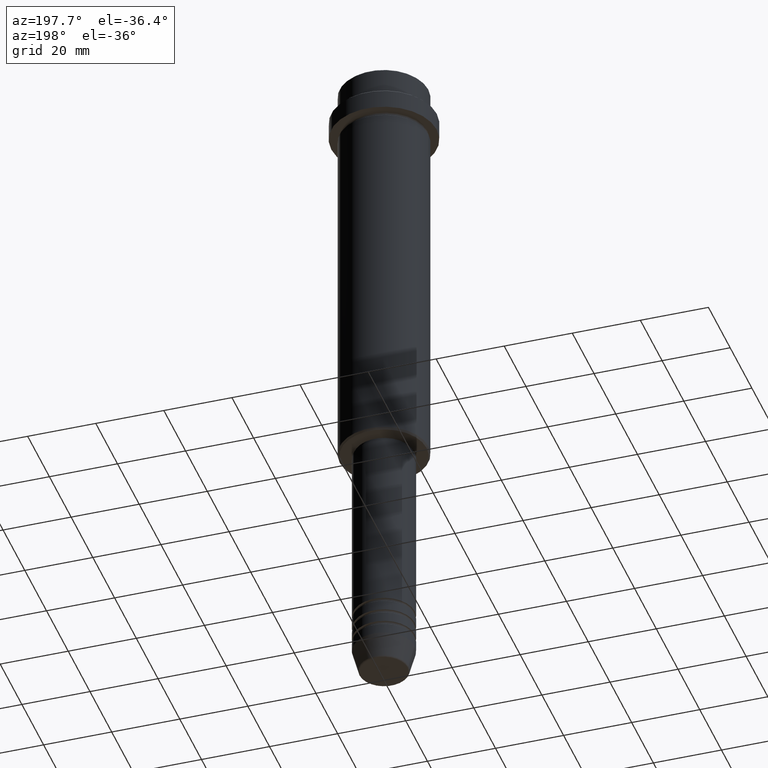
[diagram: clean part render]
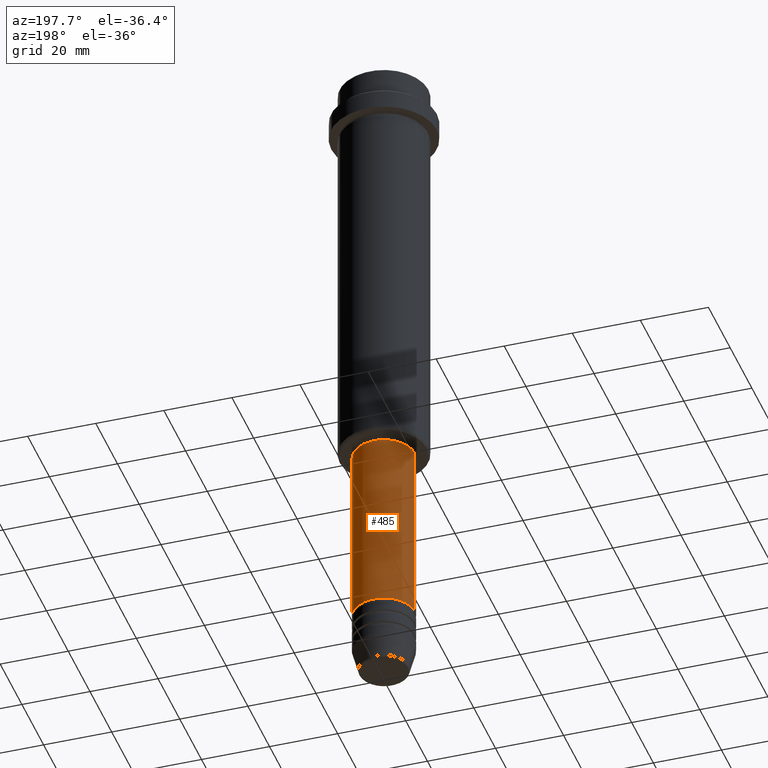
[diagram: same view with one face highlighted and labeled with its STEP entity id]
A machine part, auxiliary view. The second image highlights one B-rep face of the part: STEP entity #485.
In plain terms, the highlighted cylindrical surface (edge-blend (fillet) strip) has radius 9 mm, axis along (-0, -0, 1).
Its self-contained STEP definition (entity closure, byte-faithful):
#30 = DIRECTION ( 'NONE',  ( -0.000000000000000000, -0.000000000000000000, 1.000000000000000000 ) ) ;
#61 = CARTESIAN_POINT ( 'NONE',  ( 9.000000000000001776, 0.000000000000000000, 0.000000000000000000 ) ) ;
#114 = AXIS2_PLACEMENT_3D ( 'NONE', #522, #291, #1176 ) ;
#126 = CARTESIAN_POINT ( 'NONE',  ( -9.000000000000001776, 1.102182119232617911E-15, 0.000000000000000000 ) ) ;
#131 = CIRCLE ( 'NONE', #489, 9.000000000000000000 ) ;
#135 = DIRECTION ( 'NONE',  ( 1.000000000000000000, 0.000000000000000000, 0.000000000000000000 ) ) ;
#173 = EDGE_CURVE ( 'NONE', #1353, #426, #784, .T. ) ;
#226 = ORIENTED_EDGE ( 'NONE', *, *, #173, .T. ) ;
#233 = CIRCLE ( 'NONE', #114, 9.000000000000001776 ) ;
#260 = CARTESIAN_POINT ( 'NONE',  ( 9.000000000000000000, 0.000000000000000000, -180.9999999999999147 ) ) ;
#291 = DIRECTION ( 'NONE',  ( -0.000000000000000000, -0.000000000000000000, 1.000000000000000000 ) ) ;
#307 = VERTEX_POINT ( 'NONE', #1222 ) ;
#308 = DIRECTION ( 'NONE',  ( -0.000000000000000000, -0.000000000000000000, 1.000000000000000000 ) ) ;
#318 = ORIENTED_EDGE ( 'NONE', *, *, #509, .F. ) ;
#345 = AXIS2_PLACEMENT_3D ( 'NONE', #939, #947, #710 ) ;
#397 = VECTOR ( 'NONE', #308, 1000.000000000000000 ) ;
#425 = EDGE_CURVE ( 'NONE', #793, #1353, #131, .T. ) ;
#426 = VERTEX_POINT ( 'NONE', #1258 ) ;
#485 = ADVANCED_FACE ( 'NONE', ( #1346 ), #847, .T. ) ;
#489 = AXIS2_PLACEMENT_3D ( 'NONE', #692, #1133, #135 ) ;
#509 = EDGE_CURVE ( 'NONE', #793, #307, #1152, .T. ) ;
#522 = CARTESIAN_POINT ( 'NONE',  ( 0.000000000000000000, 0.000000000000000000, -126.0000000000000284 ) ) ;
#589 = ORIENTED_EDGE ( 'NONE', *, *, #425, .T. ) ;
#692 = CARTESIAN_POINT ( 'NONE',  ( 0.000000000000000000, 0.000000000000000000, -180.9999999999999147 ) ) ;
#710 = DIRECTION ( 'NONE',  ( 1.000000000000000000, 0.000000000000000000, 0.000000000000000000 ) ) ;
#740 = EDGE_LOOP ( 'NONE', ( #589, #226, #1065, #318 ) ) ;
#784 = LINE ( 'NONE', #126, #1053 ) ;
#793 = VERTEX_POINT ( 'NONE', #260 ) ;
#847 = CYLINDRICAL_SURFACE ( 'NONE', #345, 9.000000000000001776 ) ;
#939 = CARTESIAN_POINT ( 'NONE',  ( 0.000000000000000000, 0.000000000000000000, 0.000000000000000000 ) ) ;
#947 = DIRECTION ( 'NONE',  ( -0.000000000000000000, -0.000000000000000000, 1.000000000000000000 ) ) ;
#1053 = VECTOR ( 'NONE', #30, 1000.000000000000000 ) ;
#1065 = ORIENTED_EDGE ( 'NONE', *, *, #1290, .F. ) ;
#1133 = DIRECTION ( 'NONE',  ( -0.000000000000000000, -0.000000000000000000, 1.000000000000000000 ) ) ;
#1152 = LINE ( 'NONE', #61, #397 ) ;
#1176 = DIRECTION ( 'NONE',  ( 1.000000000000000000, 0.000000000000000000, 0.000000000000000000 ) ) ;
#1222 = CARTESIAN_POINT ( 'NONE',  ( 9.000000000000001776, 0.000000000000000000, -126.0000000000000284 ) ) ;
#1258 = CARTESIAN_POINT ( 'NONE',  ( -9.000000000000001776, 1.102182119232617911E-15, -126.0000000000000284 ) ) ;
#1290 = EDGE_CURVE ( 'NONE', #307, #426, #233, .T. ) ;
#1300 = CARTESIAN_POINT ( 'NONE',  ( -9.000000000000000000, 1.102182119232617714E-15, -180.9999999999999147 ) ) ;
#1346 = FACE_OUTER_BOUND ( 'NONE', #740, .T. ) ;
#1353 = VERTEX_POINT ( 'NONE', #1300 ) ;